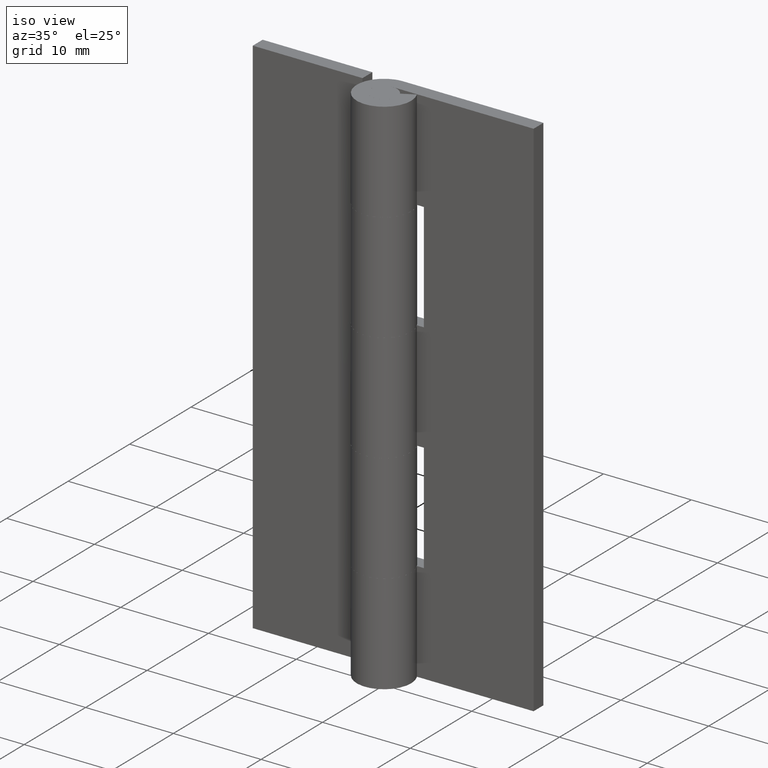
[diagram: clean part render]
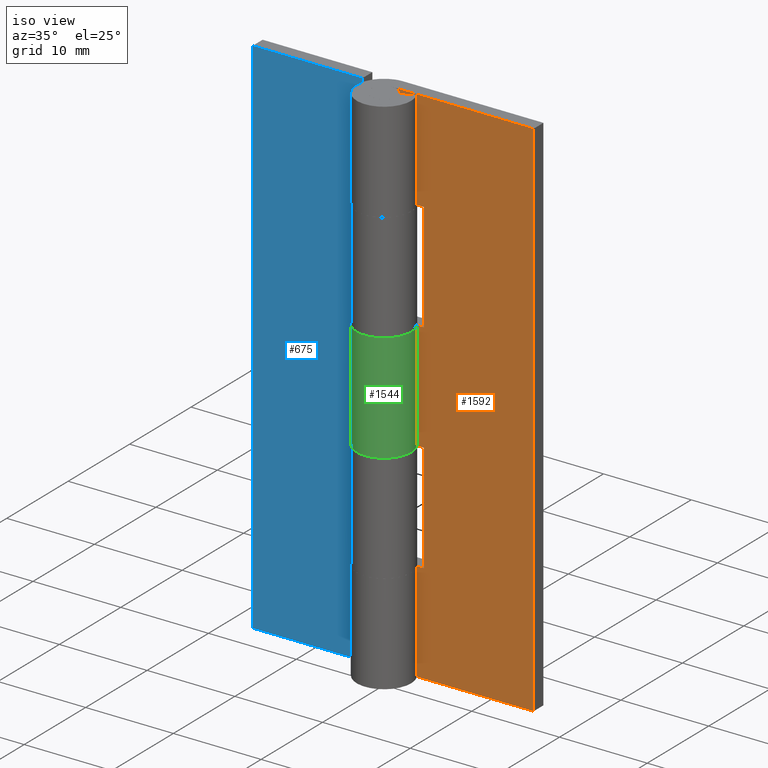
[diagram: same view with three faces highlighted in distinct colors, each labeled with its STEP entity id]
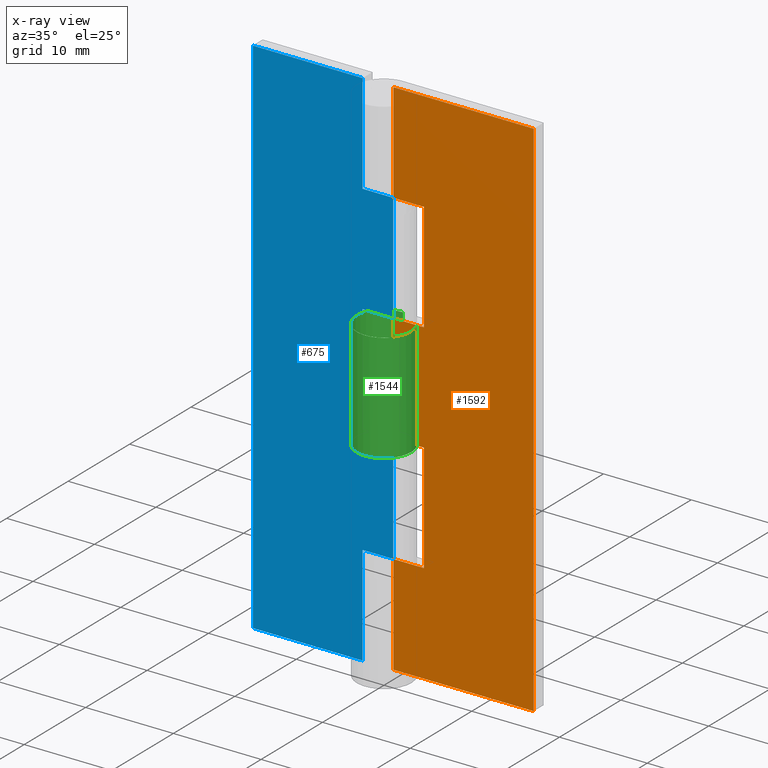
[diagram: x-ray of the same camera — body ghosted, the three highlighted faces saturated]
A machine part, iso view with three faces highlighted in distinct colors.
The next image is the same camera in x-ray (body ghosted, the three faces saturated) — at least one of them is partly hidden behind the body in this view.
Their STEP definitions:

[orange] entity #1592 — the highlighted face is a freeform B-spline surface patch.
#798=CARTESIAN_POINT('',(3.499999999999901,1.499999999999946,23.800003000000000));
#799=VERTEX_POINT('',#798);
#814=CARTESIAN_POINT('',(3.499999999999901,1.499999999999946,11.399993999999900));
#815=VERTEX_POINT('',#814);
#821=CARTESIAN_POINT('',(3.499999999999901,1.499999999999946,23.800003000000000));
#822=CARTESIAN_POINT('',(3.499999999999901,1.499999999999946,11.399993999999900));
#823=QUASI_UNIFORM_CURVE('',1,(#821,#822),.UNSPECIFIED.,.F.,.U.);
#824=EDGE_CURVE('',#799,#815,#823,.T.);
#877=CARTESIAN_POINT('',(0.0,1.500000000000000,11.399993999999900));
#878=VERTEX_POINT('',#877);
#898=CARTESIAN_POINT('',(3.499999999999901,1.499999999999946,11.399993999999900));
#899=CARTESIAN_POINT('',(0.0,1.500000000000000,11.399993999999900));
#900=QUASI_UNIFORM_CURVE('',1,(#898,#899),.UNSPECIFIED.,.F.,.U.);
#901=EDGE_CURVE('',#815,#878,#900,.T.);
#913=CARTESIAN_POINT('',(0.0,1.500000000000000,23.800002999999951));
#914=VERTEX_POINT('',#913);
#975=CARTESIAN_POINT('',(0.0,1.500000000000000,23.800002999999951));
#976=CARTESIAN_POINT('',(3.499999999999901,1.499999999999946,23.800003000000000));
#977=QUASI_UNIFORM_CURVE('',1,(#975,#976),.UNSPECIFIED.,.F.,.U.);
#978=EDGE_CURVE('',#914,#799,#977,.T.);
#988=CARTESIAN_POINT('',(3.499999999999901,1.499999999999946,48.600006000000000));
#989=VERTEX_POINT('',#988);
#1004=CARTESIAN_POINT('',(3.499999999999901,1.499999999999946,36.199996999999897));
#1005=VERTEX_POINT('',#1004);
#1011=CARTESIAN_POINT('',(3.499999999999901,1.499999999999946,48.600006000000000));
#1012=CARTESIAN_POINT('',(3.499999999999901,1.499999999999946,36.199996999999897));
#1013=QUASI_UNIFORM_CURVE('',1,(#1011,#1012),.UNSPECIFIED.,.F.,.U.);
#1014=EDGE_CURVE('',#989,#1005,#1013,.T.);
#1026=CARTESIAN_POINT('',(0.0,1.500000000000000,48.600006000000000));
#1027=VERTEX_POINT('',#1026);
#1088=CARTESIAN_POINT('',(0.0,1.500000000000000,48.600006000000000));
#1089=CARTESIAN_POINT('',(3.499999999999901,1.499999999999946,48.600006000000000));
#1090=QUASI_UNIFORM_CURVE('',1,(#1088,#1089),.UNSPECIFIED.,.F.,.U.);
#1091=EDGE_CURVE('',#1027,#989,#1090,.T.);
#1144=CARTESIAN_POINT('',(0.0,1.500000000000000,36.199996999999897));
#1145=VERTEX_POINT('',#1144);
#1165=CARTESIAN_POINT('',(3.499999999999901,1.499999999999946,36.199996999999897));
#1166=CARTESIAN_POINT('',(0.0,1.500000000000000,36.199996999999897));
#1167=QUASI_UNIFORM_CURVE('',1,(#1165,#1166),.UNSPECIFIED.,.F.,.U.);
#1168=EDGE_CURVE('',#1005,#1145,#1167,.T.);
#1180=CARTESIAN_POINT('',(0.0,1.500000000000000,60.0));
#1181=VERTEX_POINT('',#1180);
#1201=CARTESIAN_POINT('',(16.0,1.500000000000000,60.0));
#1202=VERTEX_POINT('',#1201);
#1203=CARTESIAN_POINT('',(0.0,1.500000000000000,60.0));
#1204=CARTESIAN_POINT('',(16.0,1.500000000000000,60.0));
#1205=QUASI_UNIFORM_CURVE('',1,(#1203,#1204),.UNSPECIFIED.,.F.,.U.);
#1206=EDGE_CURVE('',#1181,#1202,#1205,.T.);
#1258=CARTESIAN_POINT('',(0.0,1.500000000000000,0.0));
#1259=VERTEX_POINT('',#1258);
#1314=CARTESIAN_POINT('',(16.0,1.500000000000000,0.0));
#1315=VERTEX_POINT('',#1314);
#1321=CARTESIAN_POINT('',(0.0,1.500000000000000,0.0));
#1322=CARTESIAN_POINT('',(16.0,1.500000000000000,0.0));
#1323=QUASI_UNIFORM_CURVE('',1,(#1321,#1322),.UNSPECIFIED.,.F.,.U.);
#1324=EDGE_CURVE('',#1259,#1315,#1323,.T.);
#1335=CARTESIAN_POINT('',(16.0,1.500000000000000,0.0));
#1336=CARTESIAN_POINT('',(16.0,1.500000000000000,60.0));
#1337=QUASI_UNIFORM_CURVE('',1,(#1335,#1336),.UNSPECIFIED.,.F.,.U.);
#1338=EDGE_CURVE('',#1315,#1202,#1337,.T.);
#1427=CARTESIAN_POINT('',(0.0,1.500000000000000,48.600006000000000));
#1428=CARTESIAN_POINT('',(0.0,1.500000000000000,60.0));
#1429=QUASI_UNIFORM_CURVE('',1,(#1427,#1428),.UNSPECIFIED.,.F.,.U.);
#1430=EDGE_CURVE('',#1027,#1181,#1429,.T.);
#1565=CARTESIAN_POINT('',(-0.799199968988895,1.500000000000000,62.996999883708362));
#1566=CARTESIAN_POINT('',(-0.799199968988895,1.500000000000000,-2.997001493033767));
#1567=CARTESIAN_POINT('',(16.799200398142339,1.500000000000000,62.996999883708362));
#1568=CARTESIAN_POINT('',(16.799200398142339,1.500000000000000,-2.997001493033767));
#1569=B_SPLINE_SURFACE_WITH_KNOTS('',1,1,((#1565,#1567),(#1566,#1568)),.UNSPECIFIED.,.F.,.F.,.U.,(2,2),(2,2),(0.0,65.994001376742119),(0.0,17.598400367131230),.UNSPECIFIED.);
#1570=CARTESIAN_POINT('',(0.0,1.500000000000000,23.800002999999951));
#1571=CARTESIAN_POINT('',(0.0,1.500000000000000,36.199996999999897));
#1572=QUASI_UNIFORM_CURVE('',1,(#1570,#1571),.UNSPECIFIED.,.F.,.U.);
#1573=EDGE_CURVE('',#914,#1145,#1572,.T.);
#1574=ORIENTED_EDGE('',*,*,#1573,.F.);
#1575=ORIENTED_EDGE('',*,*,#978,.T.);
#1576=ORIENTED_EDGE('',*,*,#824,.T.);
#1577=ORIENTED_EDGE('',*,*,#901,.T.);
#1578=CARTESIAN_POINT('',(0.0,1.500000000000000,0.0));
#1579=CARTESIAN_POINT('',(0.0,1.500000000000000,11.399993999999900));
#1580=QUASI_UNIFORM_CURVE('',1,(#1578,#1579),.UNSPECIFIED.,.F.,.U.);
#1581=EDGE_CURVE('',#1259,#878,#1580,.T.);
#1582=ORIENTED_EDGE('',*,*,#1581,.F.);
#1583=ORIENTED_EDGE('',*,*,#1324,.T.);
#1584=ORIENTED_EDGE('',*,*,#1338,.T.);
#1585=ORIENTED_EDGE('',*,*,#1206,.F.);
#1586=ORIENTED_EDGE('',*,*,#1430,.F.);
#1587=ORIENTED_EDGE('',*,*,#1091,.T.);
#1588=ORIENTED_EDGE('',*,*,#1014,.T.);
#1589=ORIENTED_EDGE('',*,*,#1168,.T.);
#1590=EDGE_LOOP('',(#1574,#1575,#1576,#1577,#1582,#1583,#1584,#1585,#1586,#1587,#1588,#1589));
#1591=FACE_OUTER_BOUND('',#1590,.T.);
#1592=ADVANCED_FACE('',(#1591),#1569,.T.);

[blue] entity #675 — the highlighted face is a freeform B-spline surface patch.
#51=CARTESIAN_POINT('',(-2.755364E-016,1.500000000000000,23.800002999999951));
#52=VERTEX_POINT('',#51);
#114=CARTESIAN_POINT('',(-3.500000000000100,1.499999999999946,23.800003000000000));
#115=VERTEX_POINT('',#114);
#121=CARTESIAN_POINT('',(-2.755364E-016,1.500000000000000,23.800002999999951));
#122=CARTESIAN_POINT('',(-3.500000000000100,1.499999999999946,23.800003000000000));
#123=QUASI_UNIFORM_CURVE('',1,(#121,#122),.UNSPECIFIED.,.F.,.U.);
#124=EDGE_CURVE('',#52,#115,#123,.T.);
#134=CARTESIAN_POINT('',(-3.500000000000100,1.499999999999946,36.199996999999897));
#135=VERTEX_POINT('',#134);
#185=CARTESIAN_POINT('',(-2.755364E-016,1.500000000000000,36.199996999999897));
#186=VERTEX_POINT('',#185);
#206=CARTESIAN_POINT('',(-3.500000000000100,1.499999999999946,36.199996999999897));
#207=CARTESIAN_POINT('',(-2.755364E-016,1.500000000000000,36.199996999999897));
#208=QUASI_UNIFORM_CURVE('',1,(#206,#207),.UNSPECIFIED.,.F.,.U.);
#209=EDGE_CURVE('',#135,#186,#208,.T.);
#226=CARTESIAN_POINT('',(-3.500000000000100,1.499999999999946,23.800003000000000));
#227=CARTESIAN_POINT('',(-3.500000000000100,1.499999999999946,36.199996999999897));
#228=QUASI_UNIFORM_CURVE('',1,(#226,#227),.UNSPECIFIED.,.F.,.U.);
#229=EDGE_CURVE('',#115,#135,#228,.T.);
#239=CARTESIAN_POINT('',(-3.500000000000100,1.499999999999946,11.399993999999900));
#240=VERTEX_POINT('',#239);
#241=CARTESIAN_POINT('',(-3.500000000000100,1.500000000000000,0.0));
#242=VERTEX_POINT('',#241);
#243=CARTESIAN_POINT('',(-3.500000000000100,1.499999999999946,11.399993999999900));
#244=CARTESIAN_POINT('',(-3.500000000000100,1.500000000000000,0.0));
#245=QUASI_UNIFORM_CURVE('',1,(#243,#244),.UNSPECIFIED.,.F.,.U.);
#246=EDGE_CURVE('',#240,#242,#245,.T.);
#275=CARTESIAN_POINT('',(-2.755364E-016,1.500000000000000,11.399993999999900));
#276=VERTEX_POINT('',#275);
#277=CARTESIAN_POINT('',(-2.755364E-016,1.500000000000000,11.399993999999900));
#278=CARTESIAN_POINT('',(-3.500000000000100,1.499999999999946,11.399993999999900));
#279=QUASI_UNIFORM_CURVE('',1,(#277,#278),.UNSPECIFIED.,.F.,.U.);
#280=EDGE_CURVE('',#276,#240,#279,.T.);
#352=CARTESIAN_POINT('',(-3.500000000000100,1.499999999999946,60.0));
#353=VERTEX_POINT('',#352);
#354=CARTESIAN_POINT('',(-3.500000000000100,1.499999999999946,48.600006000000000));
#355=VERTEX_POINT('',#354);
#356=CARTESIAN_POINT('',(-3.500000000000100,1.499999999999946,60.0));
#357=CARTESIAN_POINT('',(-3.500000000000100,1.499999999999946,48.600006000000000));
#358=QUASI_UNIFORM_CURVE('',1,(#356,#357),.UNSPECIFIED.,.F.,.U.);
#359=EDGE_CURVE('',#353,#355,#358,.T.);
#388=CARTESIAN_POINT('',(-2.755364E-016,1.500000000000000,48.600006000000000));
#389=VERTEX_POINT('',#388);
#390=CARTESIAN_POINT('',(-3.500000000000100,1.499999999999946,48.600006000000000));
#391=CARTESIAN_POINT('',(-2.755364E-016,1.500000000000000,48.600006000000000));
#392=QUASI_UNIFORM_CURVE('',1,(#390,#391),.UNSPECIFIED.,.F.,.U.);
#393=EDGE_CURVE('',#355,#389,#392,.T.);
#467=CARTESIAN_POINT('',(-16.0,1.500000000000000,0.0));
#468=VERTEX_POINT('',#467);
#474=CARTESIAN_POINT('',(-16.0,1.500000000000000,60.0));
#475=VERTEX_POINT('',#474);
#476=CARTESIAN_POINT('',(-16.0,1.500000000000000,60.0));
#477=CARTESIAN_POINT('',(-16.0,1.500000000000000,0.0));
#478=QUASI_UNIFORM_CURVE('',1,(#476,#477),.UNSPECIFIED.,.F.,.U.);
#479=EDGE_CURVE('',#475,#468,#478,.T.);
#508=CARTESIAN_POINT('',(-16.0,1.500000000000000,60.0));
#509=CARTESIAN_POINT('',(-3.500000000000100,1.499999999999946,60.0));
#510=QUASI_UNIFORM_CURVE('',1,(#508,#509),.UNSPECIFIED.,.F.,.U.);
#511=EDGE_CURVE('',#475,#353,#510,.T.);
#527=CARTESIAN_POINT('',(-16.0,1.500000000000000,0.0));
#528=CARTESIAN_POINT('',(-3.500000000000100,1.500000000000000,0.0));
#529=QUASI_UNIFORM_CURVE('',1,(#527,#528),.UNSPECIFIED.,.F.,.U.);
#530=EDGE_CURVE('',#468,#242,#529,.T.);
#643=CARTESIAN_POINT('',(-2.755364E-016,1.500000000000000,23.800002999999951));
#644=CARTESIAN_POINT('',(-2.755364E-016,1.500000000000000,11.399993999999900));
#645=QUASI_UNIFORM_CURVE('',1,(#643,#644),.UNSPECIFIED.,.F.,.U.);
#646=EDGE_CURVE('',#52,#276,#645,.T.);
#652=CARTESIAN_POINT('',(-16.799199968988891,1.500000000000000,-2.996999883708359));
#653=CARTESIAN_POINT('',(-16.799199968988891,1.500000000000000,62.997001493033771));
#654=CARTESIAN_POINT('',(0.799200398142338,1.500000000000000,-2.996999883708359));
#655=CARTESIAN_POINT('',(0.799200398142338,1.500000000000000,62.997001493033771));
#656=B_SPLINE_SURFACE_WITH_KNOTS('',1,1,((#652,#654),(#653,#655)),.UNSPECIFIED.,.F.,.F.,.U.,(2,2),(2,2),(0.0,65.994001376742133),(0.0,17.598400367131230),.UNSPECIFIED.);
#657=ORIENTED_EDGE('',*,*,#229,.T.);
#658=ORIENTED_EDGE('',*,*,#209,.T.);
#659=CARTESIAN_POINT('',(-2.755364E-016,1.500000000000000,48.600006000000000));
#660=CARTESIAN_POINT('',(-2.755364E-016,1.500000000000000,36.199996999999897));
#661=QUASI_UNIFORM_CURVE('',1,(#659,#660),.UNSPECIFIED.,.F.,.U.);
#662=EDGE_CURVE('',#389,#186,#661,.T.);
#663=ORIENTED_EDGE('',*,*,#662,.F.);
#664=ORIENTED_EDGE('',*,*,#393,.F.);
#665=ORIENTED_EDGE('',*,*,#359,.F.);
#666=ORIENTED_EDGE('',*,*,#511,.F.);
#667=ORIENTED_EDGE('',*,*,#479,.T.);
#668=ORIENTED_EDGE('',*,*,#530,.T.);
#669=ORIENTED_EDGE('',*,*,#246,.F.);
#670=ORIENTED_EDGE('',*,*,#280,.F.);
#671=ORIENTED_EDGE('',*,*,#646,.F.);
#672=ORIENTED_EDGE('',*,*,#124,.T.);
#673=EDGE_LOOP('',(#657,#658,#663,#664,#665,#666,#667,#668,#669,#670,#671,#672));
#674=FACE_OUTER_BOUND('',#673,.T.);
#675=ADVANCED_FACE('',(#674),#656,.F.);

[green] entity #1544 — the highlighted face is a freeform B-spline surface patch.
#934=CARTESIAN_POINT('',(2.739981751764050,1.450000000000000,23.800002999999951));
#935=VERTEX_POINT('',#934);
#941=CARTESIAN_POINT('',(0.0,3.099998000000050,23.800003000000000));
#942=VERTEX_POINT('',#941);
#943=CARTESIAN_POINT('',(2.739981751764050,1.450000000000000,23.800002999999951));
#944=CARTESIAN_POINT('',(3.842027408336779,-0.632471143840449,23.800002999999915));
#945=CARTESIAN_POINT('',(2.130594885355309,-2.251790737784744,23.800002999999919));
#946=CARTESIAN_POINT('',(0.419162362373838,-3.871110331729040,23.800002999999943));
#947=CARTESIAN_POINT('',(-1.599218559171949,-2.655655344977875,23.800002999999979));
#948=CARTESIAN_POINT('',(-3.617599480717734,-1.440200358226708,23.800003000000014));
#949=CARTESIAN_POINT('',(-2.986848545660751,0.829898189834442,23.800003000000029));
#950=CARTESIAN_POINT('',(-2.356097610603767,3.099996737895593,23.800003000000043));
#951=CARTESIAN_POINT('',(0.0,3.099998000000050,23.800003000000000));
#959=(BOUNDED_CURVE()B_SPLINE_CURVE(2,(#943,#944,#945,#946,#947,#948,#949,#950,#951),.UNSPECIFIED.,.F.,.U.)B_SPLINE_CURVE_WITH_KNOTS((3,2,2,2,3),(0.0,0.250000000000000,0.500000000000000,0.750000000000000,1.0),.UNSPECIFIED.)CURVE()GEOMETRIC_REPRESENTATION_ITEM()RATIONAL_B_SPLINE_CURVE((1.0,0.796150117301085,1.0,0.796150117301085,1.0,0.796150117301085,1.0,0.796150117301085,1.0))REPRESENTATION_ITEM(''));
#960=EDGE_CURVE('',#935,#942,#959,.T.);
#962=CARTESIAN_POINT('',(0.003521362805220,3.099998000000050,23.800003000000000));
#963=VERTEX_POINT('',#962);
#964=CARTESIAN_POINT('',(0.0,3.099998000000050,23.800003000000000));
#965=CARTESIAN_POINT('',(0.003521362805220,3.099998000000050,23.800003000000000));
#966=QUASI_UNIFORM_CURVE('',1,(#964,#965),.UNSPECIFIED.,.F.,.U.);
#967=EDGE_CURVE('',#942,#963,#966,.T.);
#1102=CARTESIAN_POINT('',(0.003521362805220,3.099998000000050,36.199996999999897));
#1103=VERTEX_POINT('',#1102);
#1109=CARTESIAN_POINT('',(0.0,3.099998000000050,36.199996999999897));
#1110=VERTEX_POINT('',#1109);
#1111=CARTESIAN_POINT('',(0.0,3.099998000000050,36.199996999999897));
#1112=CARTESIAN_POINT('',(0.003521362805220,3.099998000000050,36.199996999999897));
#1113=QUASI_UNIFORM_CURVE('',1,(#1111,#1112),.UNSPECIFIED.,.F.,.U.);
#1114=EDGE_CURVE('',#1110,#1103,#1113,.T.);
#1116=CARTESIAN_POINT('',(2.739981751764050,1.450000000000000,36.199996999999897));
#1117=VERTEX_POINT('',#1116);
#1118=CARTESIAN_POINT('',(0.0,3.099998000000050,36.199996999999897));
#1119=CARTESIAN_POINT('',(-2.356097610603766,3.099996737895594,36.199996999999904));
#1120=CARTESIAN_POINT('',(-2.986848545660751,0.829898189834441,36.199996999999897));
#1121=CARTESIAN_POINT('',(-3.617599480717734,-1.440200358226711,36.199996999999904));
#1122=CARTESIAN_POINT('',(-1.599218559171948,-2.655655344977876,36.199996999999897));
#1123=CARTESIAN_POINT('',(0.419162362373838,-3.871110331729040,36.199996999999904));
#1124=CARTESIAN_POINT('',(2.130594885355308,-2.251790737784746,36.199996999999897));
#1125=CARTESIAN_POINT('',(3.842027408336780,-0.632471143840450,36.199996999999904));
#1126=CARTESIAN_POINT('',(2.739981751764050,1.450000000000000,36.199996999999897));
#1134=(BOUNDED_CURVE()B_SPLINE_CURVE(2,(#1118,#1119,#1120,#1121,#1122,#1123,#1124,#1125,#1126),.UNSPECIFIED.,.F.,.U.)B_SPLINE_CURVE_WITH_KNOTS((3,2,2,2,3),(0.0,0.250000000000000,0.500000000000000,0.750000000000000,1.0),.UNSPECIFIED.)CURVE()GEOMETRIC_REPRESENTATION_ITEM()RATIONAL_B_SPLINE_CURVE((1.0,0.796150117301085,1.0,0.796150117301085,1.0,0.796150117301085,1.0,0.796150117301085,1.0))REPRESENTATION_ITEM(''));
#1135=EDGE_CURVE('',#1110,#1117,#1134,.T.);
#1461=CARTESIAN_POINT('',(2.739981751764050,1.450000000000000,23.800002999999951));
#1462=CARTESIAN_POINT('',(2.739981751764050,1.450000000000000,36.199996999999897));
#1463=QUASI_UNIFORM_CURVE('',1,(#1461,#1462),.UNSPECIFIED.,.F.,.U.);
#1464=EDGE_CURVE('',#935,#1117,#1463,.T.);
#1510=CARTESIAN_POINT('',(2.699834918711258,1.523447213298633,23.490003149999922));
#1511=CARTESIAN_POINT('',(2.699834918711258,1.523447213298633,36.517746846249914));
#1512=CARTESIAN_POINT('',(4.558915972059316,-1.771193979864720,23.490003149999918));
#1513=CARTESIAN_POINT('',(4.558915972059316,-1.771193979864720,36.517746846249906));
#1514=CARTESIAN_POINT('',(0.963178343373894,-2.946572157415379,23.490003149999922));
#1515=CARTESIAN_POINT('',(0.963178343373894,-2.946572157415379,36.517746846249914));
#1516=CARTESIAN_POINT('',(-2.632559285311528,-4.121950334966037,23.490003149999918));
#1517=CARTESIAN_POINT('',(-2.632559285311528,-4.121950334966037,36.517746846249906));
#1518=CARTESIAN_POINT('',(-3.078396003541830,-0.365346473060419,23.490003149999922));
#1519=CARTESIAN_POINT('',(-3.078396003541830,-0.365346473060419,36.517746846249914));
#1520=CARTESIAN_POINT('',(-3.524232721772133,3.391257388845200,23.490003149999918));
#1521=CARTESIAN_POINT('',(-3.524232721772133,3.391257388845200,36.517746846249906));
#1522=CARTESIAN_POINT('',(0.246733547457015,3.090165457796601,23.490003149999922));
#1523=CARTESIAN_POINT('',(0.246733547457015,3.090165457796601,36.517746846249914));
#1531=(BOUNDED_SURFACE()B_SPLINE_SURFACE(1,2,((#1510,#1512,#1514,#1516,#1518,#1520,#1522),(#1511,#1513,#1515,#1517,#1519,#1521,#1523)),.UNSPECIFIED.,.F.,.F.,.U.)B_SPLINE_SURFACE_WITH_KNOTS((2,2),(3,2,2,3),(0.0,13.027743696249990),(0.0,5.870281529289078,11.740563058578161,17.610844587867231),.UNSPECIFIED.)GEOMETRIC_REPRESENTATION_ITEM()RATIONAL_B_SPLINE_SURFACE(((1.0,0.633830967398710,1.0,0.633830967398710,1.0,0.633830967398710,1.0),(1.0,0.633830967398710,1.0,0.633830967398710,1.0,0.633830967398710,1.0)))REPRESENTATION_ITEM('')SURFACE());
#1532=ORIENTED_EDGE('',*,*,#967,.F.);
#1533=ORIENTED_EDGE('',*,*,#960,.F.);
#1534=ORIENTED_EDGE('',*,*,#1464,.T.);
#1535=ORIENTED_EDGE('',*,*,#1135,.F.);
#1536=ORIENTED_EDGE('',*,*,#1114,.T.);
#1537=CARTESIAN_POINT('',(0.003521362805220,3.099998000000050,23.800003000000000));
#1538=CARTESIAN_POINT('',(0.003521362805220,3.099998000000050,36.199996999999897));
#1539=QUASI_UNIFORM_CURVE('',1,(#1537,#1538),.UNSPECIFIED.,.F.,.U.);
#1540=EDGE_CURVE('',#963,#1103,#1539,.T.);
#1541=ORIENTED_EDGE('',*,*,#1540,.F.);
#1542=EDGE_LOOP('',(#1532,#1533,#1534,#1535,#1536,#1541));
#1543=FACE_OUTER_BOUND('',#1542,.T.);
#1544=ADVANCED_FACE('',(#1543),#1531,.T.);